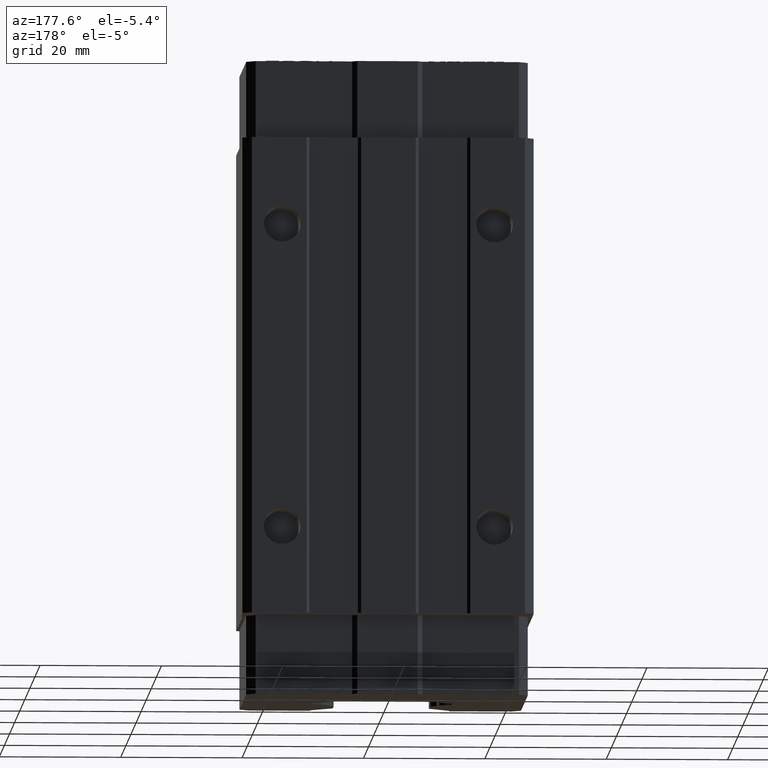
[diagram: clean part render]
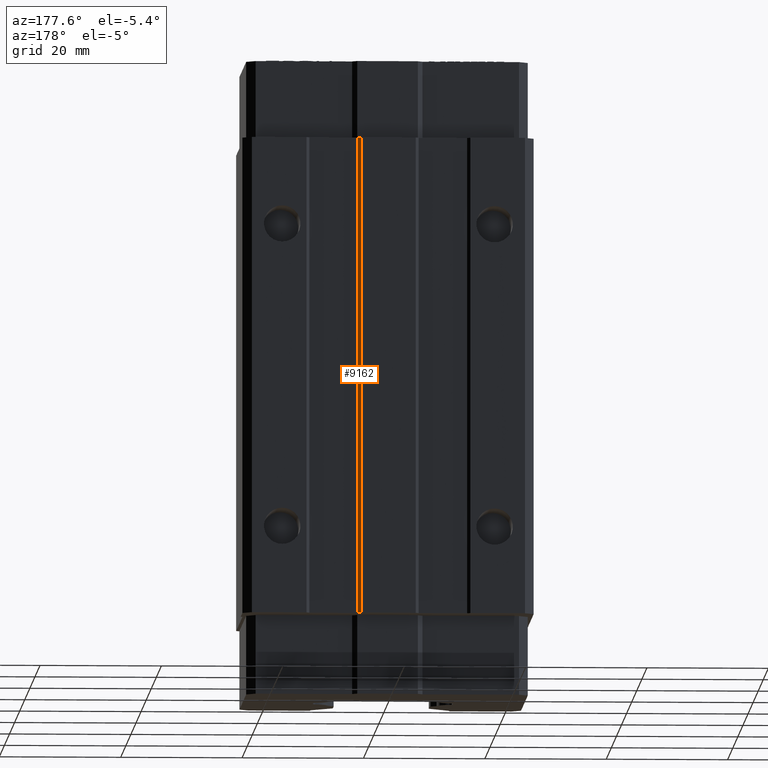
[diagram: same view with one face highlighted and labeled with its STEP entity id]
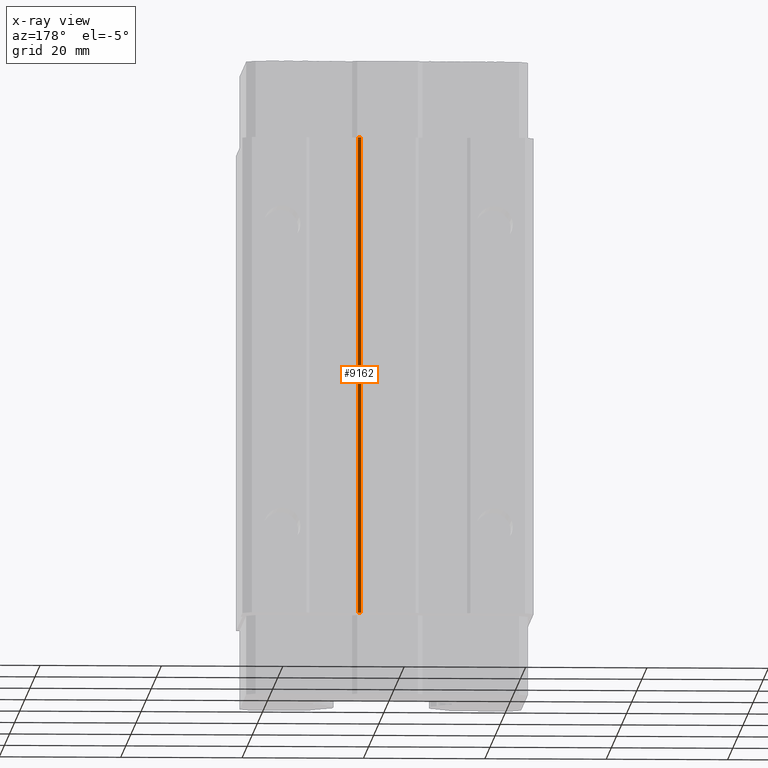
[diagram: x-ray of the same camera — body ghosted, the highlighted face saturated]
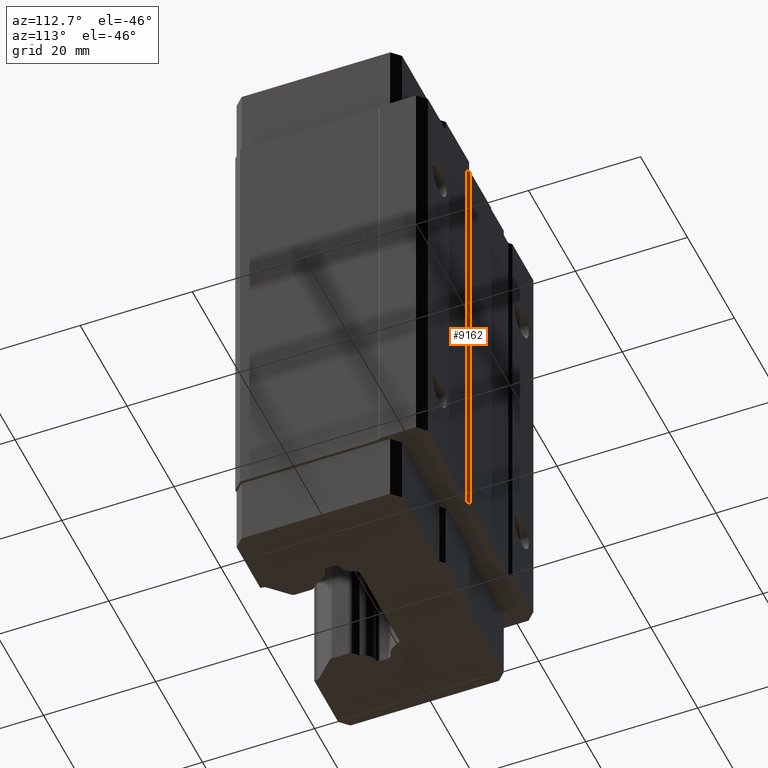
[diagram: same view with one face highlighted and labeled with its STEP entity id]
A machine part, auxiliary view. The second image highlights one B-rep face of the part: STEP entity #9162.
The next image is the same camera in x-ray: the body ghosted, the highlighted face saturated — about 0% of this face is hidden behind the body in this view.
A second angle (auxiliary view) of the same face is appended — the face is thin or edge-on in the first view.
In plain terms, the highlighted planar face has unit normal (0.7071, 0.7071, 0).
Its self-contained STEP definition (entity closure, byte-faithful):
#4193 = CARTESIAN_POINT ( 'NONE',  ( 5.000000000000000900, 17.50000000000000000, 39.30000000000001800 ) ) ;
#4194 = CARTESIAN_POINT ( 'NONE',  ( 5.000000000000000900, 17.50000000000000000, -39.29999999999999700 ) ) ;
#4195 = DIRECTION ( 'NONE',  ( 0.0000000000000000000, 0.0000000000000000000, 1.000000000000000000 ) ) ;
#4196 = VECTOR ( 'NONE', #4195, 1000.000000000000000 ) ;
#4197 = CARTESIAN_POINT ( 'NONE',  ( 5.000000000000000900, 17.50000000000000000, -39.29999999999999700 ) ) ;
#4198 = LINE ( 'NONE', #4197, #4196 ) ;
#4199 = DIRECTION ( 'NONE',  ( -0.7071067811865474600, 0.7071067811865474600, 0.0000000000000000000 ) ) ;
#4200 = DIRECTION ( 'NONE',  ( 0.7071067811865475700, 0.7071067811865475700, 0.0000000000000000000 ) ) ;
#4201 = CARTESIAN_POINT ( 'NONE',  ( 5.000000000000000000, 17.50000000000000000, -39.29999999999999700 ) ) ;
#4202 = AXIS2_PLACEMENT_3D ( 'NONE', #4201, #4200, #4199 ) ;
#4203 = PLANE ( 'NONE',  #4202 ) ;
#4204 = FACE_OUTER_BOUND ( 'NONE', #9163, .T. ) ;
#4248 = CARTESIAN_POINT ( 'NONE',  ( 4.500000000000000900, 18.00000000000000400, 39.30000000000000400 ) ) ;
#4249 = DIRECTION ( 'NONE',  ( 0.0000000000000000000, 0.0000000000000000000, -1.000000000000000000 ) ) ;
#4250 = VECTOR ( 'NONE', #4249, 1000.000000000000000 ) ;
#4251 = CARTESIAN_POINT ( 'NONE',  ( 4.500000000000000900, 18.00000000000000400, -39.29999999999999700 ) ) ;
#4252 = LINE ( 'NONE', #4251, #4250 ) ;
#4253 = CARTESIAN_POINT ( 'NONE',  ( 4.500000000000000900, 18.00000000000000400, -39.29999999999999700 ) ) ;
#4254 = DIRECTION ( 'NONE',  ( -0.7071067811865474600, 0.7071067811865474600, 0.0000000000000000000 ) ) ;
#4255 = VECTOR ( 'NONE', #4254, 1000.000000000000100 ) ;
#4256 = CARTESIAN_POINT ( 'NONE',  ( 5.000000000000000000, 17.50000000000000000, -39.29999999999999700 ) ) ;
#4257 = LINE ( 'NONE', #4256, #4255 ) ;
#4348 = DIRECTION ( 'NONE',  ( 0.7071067811865474600, -0.7071067811865474600, 0.0000000000000000000 ) ) ;
#4349 = VECTOR ( 'NONE', #4348, 1000.000000000000100 ) ;
#4350 = CARTESIAN_POINT ( 'NONE',  ( 5.000000000000000000, 17.50000000000000000, 39.30000000000002600 ) ) ;
#4354 = LINE ( 'NONE', #4350, #4349 ) ;
#9162 = ADVANCED_FACE ( 'NONE', ( #4204 ), #4203, .T. ) ;
#9163 = EDGE_LOOP ( 'NONE', ( #9164, #9168, #9171, #9228 ) ) ;
#9164 = ORIENTED_EDGE ( 'NONE', *, *, #9165, .F. ) ;
#9165 = EDGE_CURVE ( 'NONE', #9166, #9167, #4198, .T. ) ;
#9166 = VERTEX_POINT ( 'NONE', #4194 ) ;
#9167 = VERTEX_POINT ( 'NONE', #4193 ) ;
#9168 = ORIENTED_EDGE ( 'NONE', *, *, #9169, .T. ) ;
#9169 = EDGE_CURVE ( 'NONE', #9166, #9170, #4257, .T. ) ;
#9170 = VERTEX_POINT ( 'NONE', #4253 ) ;
#9171 = ORIENTED_EDGE ( 'NONE', *, *, #9172, .F. ) ;
#9172 = EDGE_CURVE ( 'NONE', #9173, #9170, #4252, .T. ) ;
#9173 = VERTEX_POINT ( 'NONE', #4248 ) ;
#9228 = ORIENTED_EDGE ( 'NONE', *, *, #9229, .T. ) ;
#9229 = EDGE_CURVE ( 'NONE', #9173, #9167, #4354, .T. ) ;